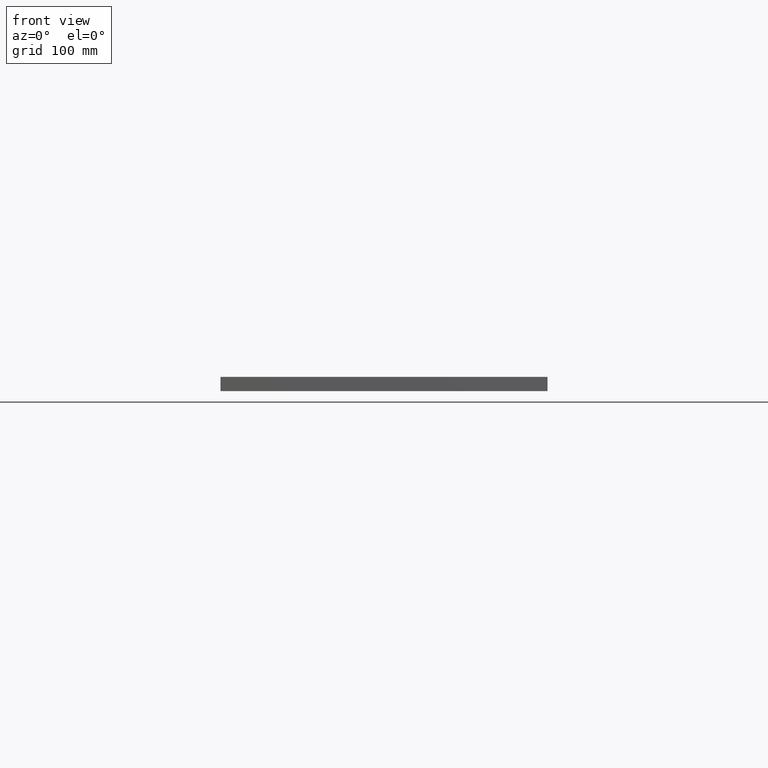
[diagram: clean part render]
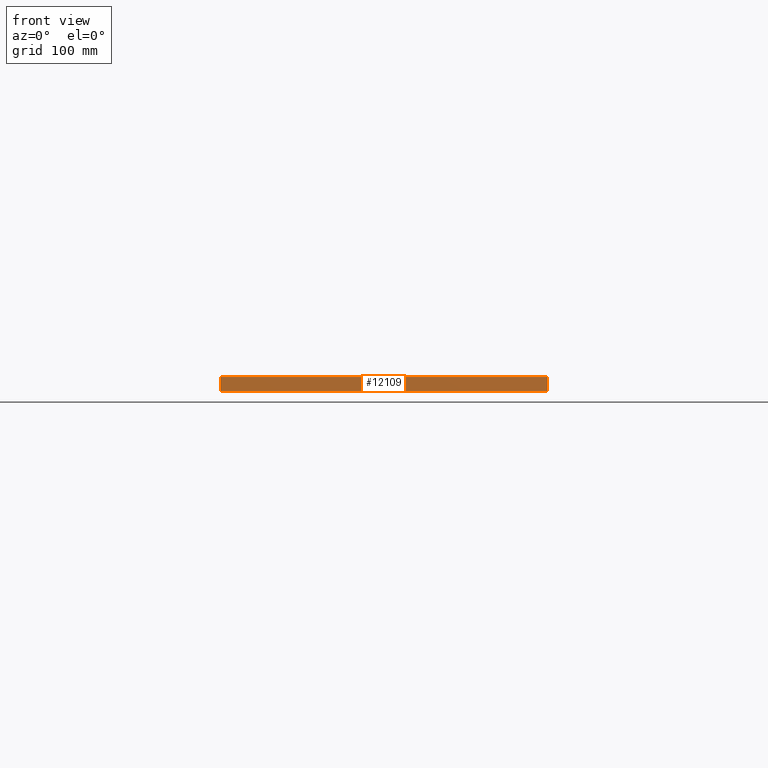
[diagram: same view with one face highlighted and labeled with its STEP entity id]
A machine part, front view. The second image highlights one B-rep face of the part: STEP entity #12109.
In plain terms, the highlighted planar face has unit normal (0, 1, 0).
Its self-contained STEP definition (entity closure, byte-faithful):
#467 = EDGE_CURVE ( 'NONE', #1526, #11939, #4077, .T. ) ;
#912 = CARTESIAN_POINT ( 'NONE',  ( -150.0000000000000000, -299.9999999999999400, 0.0000000000000000000 ) ) ;
#1526 = VERTEX_POINT ( 'NONE', #15097 ) ;
#1594 = LINE ( 'NONE', #12644, #4577 ) ;
#2286 = ORIENTED_EDGE ( 'NONE', *, *, #467, .F. ) ;
#2466 = DIRECTION ( 'NONE',  ( -0.0000000000000000000, -0.0000000000000000000, -1.000000000000000000 ) ) ;
#2535 = VERTEX_POINT ( 'NONE', #10396 ) ;
#4077 = LINE ( 'NONE', #15989, #13806 ) ;
#4577 = VECTOR ( 'NONE', #15215, 1000.000000000000000 ) ;
#5666 = ORIENTED_EDGE ( 'NONE', *, *, #6555, .F. ) ;
#6228 = PLANE ( 'NONE',  #11706 ) ;
#6555 = EDGE_CURVE ( 'NONE', #2535, #1526, #1594, .T. ) ;
#7496 = DIRECTION ( 'NONE',  ( 0.0000000000000000000, 1.000000000000000000, 0.0000000000000000000 ) ) ;
#8842 = VERTEX_POINT ( 'NONE', #912 ) ;
#9187 = CARTESIAN_POINT ( 'NONE',  ( -150.0000000000000000, -299.9999999999999400, 0.0000000000000000000 ) ) ;
#9400 = LINE ( 'NONE', #10075, #14961 ) ;
#10075 = CARTESIAN_POINT ( 'NONE',  ( -150.0000000000000000, -299.9999999999999400, 13.00000000000000000 ) ) ;
#10159 = EDGE_LOOP ( 'NONE', ( #16258, #2286, #5666, #14923 ) ) ;
#10396 = CARTESIAN_POINT ( 'NONE',  ( -150.0000000000000000, -299.9999999999999400, 13.00000000000000000 ) ) ;
#10883 = EDGE_CURVE ( 'NONE', #2535, #8842, #9400, .T. ) ;
#10893 = DIRECTION ( 'NONE',  ( -0.0000000000000000000, -0.0000000000000000000, -1.000000000000000000 ) ) ;
#11706 = AXIS2_PLACEMENT_3D ( 'NONE', #16328, #7496, #16376 ) ;
#11939 = VERTEX_POINT ( 'NONE', #14926 ) ;
#12109 = ADVANCED_FACE ( 'NONE', ( #12917 ), #6228, .F. ) ;
#12308 = VECTOR ( 'NONE', #12989, 1000.000000000000000 ) ;
#12644 = CARTESIAN_POINT ( 'NONE',  ( -150.0000000000000000, -299.9999999999999400, 13.00000000000000000 ) ) ;
#12907 = EDGE_CURVE ( 'NONE', #8842, #11939, #15679, .T. ) ;
#12917 = FACE_OUTER_BOUND ( 'NONE', #10159, .T. ) ;
#12989 = DIRECTION ( 'NONE',  ( 1.000000000000000000, 0.0000000000000000000, 0.0000000000000000000 ) ) ;
#13806 = VECTOR ( 'NONE', #10893, 1000.000000000000000 ) ;
#14923 = ORIENTED_EDGE ( 'NONE', *, *, #10883, .T. ) ;
#14926 = CARTESIAN_POINT ( 'NONE',  ( 150.0000000000000000, -299.9999999999999400, 0.0000000000000000000 ) ) ;
#14961 = VECTOR ( 'NONE', #2466, 1000.000000000000000 ) ;
#15097 = CARTESIAN_POINT ( 'NONE',  ( 150.0000000000000000, -299.9999999999999400, 13.00000000000000000 ) ) ;
#15215 = DIRECTION ( 'NONE',  ( 1.000000000000000000, 0.0000000000000000000, 0.0000000000000000000 ) ) ;
#15679 = LINE ( 'NONE', #9187, #12308 ) ;
#15989 = CARTESIAN_POINT ( 'NONE',  ( 150.0000000000000000, -299.9999999999999400, 13.00000000000000000 ) ) ;
#16258 = ORIENTED_EDGE ( 'NONE', *, *, #12907, .T. ) ;
#16328 = CARTESIAN_POINT ( 'NONE',  ( -150.0000000000000000, -299.9999999999999400, 13.00000000000000000 ) ) ;
#16376 = DIRECTION ( 'NONE',  ( 0.0000000000000000000, -0.0000000000000000000, 1.000000000000000000 ) ) ;